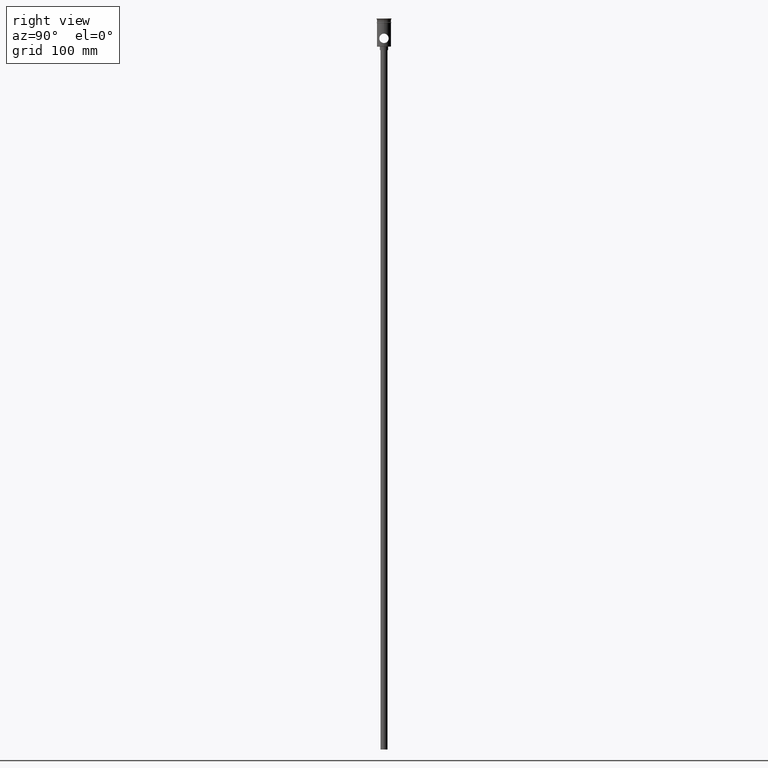
[diagram: clean part render]
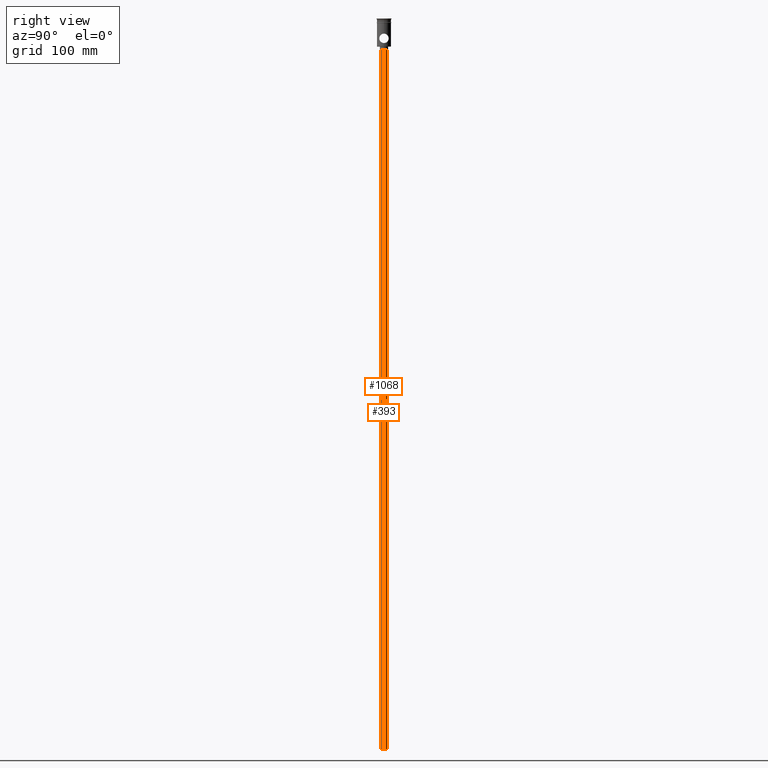
[diagram: same view with one multi-face feature highlighted, each face labeled with its STEP entity id]
A machine part, right view. The highlighted faces form ONE feature: a constant-radius fillet chain: 2 tangent blend faces with common blend radius 3 mm. The faces share edges in the B-rep.
Their STEP definitions:
[1] entity #393 (Cylinder):
#2 = EDGE_LOOP ( 'NONE', ( #1062, #1143, #716, #708 ) ) ;
#23 = CARTESIAN_POINT ( 'NONE',  ( -3.000000000000000444, 3.673940397442060361E-16, -624.0000000000000000 ) ) ;
#123 = VECTOR ( 'NONE', #1283, 1000.000000000000000 ) ;
#148 = CIRCLE ( 'NONE', #1273, 3.000000000000000444 ) ;
#180 = DIRECTION ( 'NONE',  ( 1.000000000000000000, 0.000000000000000000, 0.000000000000000000 ) ) ;
#232 = DIRECTION ( 'NONE',  ( -0.000000000000000000, -0.000000000000000000, 1.000000000000000000 ) ) ;
#254 = DIRECTION ( 'NONE',  ( 0.000000000000000000, 0.000000000000000000, -1.000000000000000000 ) ) ;
#262 = VERTEX_POINT ( 'NONE', #640 ) ;
#283 = AXIS2_PLACEMENT_3D ( 'NONE', #304, #400, #180 ) ;
#297 = FACE_OUTER_BOUND ( 'NONE', #2, .T. ) ;
#304 = CARTESIAN_POINT ( 'NONE',  ( 0.000000000000000000, 0.000000000000000000, -624.0000000000000000 ) ) ;
#308 = CARTESIAN_POINT ( 'NONE',  ( 0.000000000000000000, 0.000000000000000000, -27.00000000000000000 ) ) ;
#359 = VECTOR ( 'NONE', #232, 1000.000000000000000 ) ;
#393 = ADVANCED_FACE ( 'NONE', ( #297 ), #1208, .T. ) ;
#400 = DIRECTION ( 'NONE',  ( -0.000000000000000000, -0.000000000000000000, 1.000000000000000000 ) ) ;
#606 = VERTEX_POINT ( 'NONE', #817 ) ;
#621 = AXIS2_PLACEMENT_3D ( 'NONE', #1184, #254, #1161 ) ;
#627 = EDGE_CURVE ( 'NONE', #1144, #262, #1044, .T. ) ;
#640 = CARTESIAN_POINT ( 'NONE',  ( -3.000000000000000444, 3.673940397442060361E-16, -27.00000000000000000 ) ) ;
#708 = ORIENTED_EDGE ( 'NONE', *, *, #1397, .F. ) ;
#716 = ORIENTED_EDGE ( 'NONE', *, *, #1206, .T. ) ;
#817 = CARTESIAN_POINT ( 'NONE',  ( 3.000000000000000444, 0.000000000000000000, -27.00000000000000000 ) ) ;
#862 = DIRECTION ( 'NONE',  ( 0.000000000000000000, 0.000000000000000000, -1.000000000000000000 ) ) ;
#940 = EDGE_CURVE ( 'NONE', #1144, #1414, #1079, .T. ) ;
#1016 = DIRECTION ( 'NONE',  ( -1.000000000000000000, 0.000000000000000000, 0.000000000000000000 ) ) ;
#1044 = LINE ( 'NONE', #23, #123 ) ;
#1062 = ORIENTED_EDGE ( 'NONE', *, *, #940, .F. ) ;
#1079 = CIRCLE ( 'NONE', #621, 3.000000000000000444 ) ;
#1143 = ORIENTED_EDGE ( 'NONE', *, *, #627, .T. ) ;
#1144 = VERTEX_POINT ( 'NONE', #1215 ) ;
#1151 = CARTESIAN_POINT ( 'NONE',  ( 3.000000000000000444, 0.000000000000000000, -624.0000000000000000 ) ) ;
#1161 = DIRECTION ( 'NONE',  ( -1.000000000000000000, 0.000000000000000000, 0.000000000000000000 ) ) ;
#1184 = CARTESIAN_POINT ( 'NONE',  ( 0.000000000000000000, 0.000000000000000000, -624.0000000000000000 ) ) ;
#1206 = EDGE_CURVE ( 'NONE', #262, #606, #148, .T. ) ;
#1208 = CYLINDRICAL_SURFACE ( 'NONE', #283, 3.000000000000000444 ) ;
#1215 = CARTESIAN_POINT ( 'NONE',  ( -3.000000000000000444, 3.673940397442060361E-16, -624.0000000000000000 ) ) ;
#1264 = LINE ( 'NONE', #1390, #359 ) ;
#1273 = AXIS2_PLACEMENT_3D ( 'NONE', #308, #862, #1016 ) ;
#1283 = DIRECTION ( 'NONE',  ( -0.000000000000000000, -0.000000000000000000, 1.000000000000000000 ) ) ;
#1390 = CARTESIAN_POINT ( 'NONE',  ( 3.000000000000000444, 0.000000000000000000, -624.0000000000000000 ) ) ;
#1397 = EDGE_CURVE ( 'NONE', #1414, #606, #1264, .T. ) ;
#1414 = VERTEX_POINT ( 'NONE', #1151 ) ;
[2] entity #1068 (Cylinder):
#23 = CARTESIAN_POINT ( 'NONE',  ( -3.000000000000000444, 3.673940397442060361E-16, -624.0000000000000000 ) ) ;
#123 = VECTOR ( 'NONE', #1283, 1000.000000000000000 ) ;
#147 = AXIS2_PLACEMENT_3D ( 'NONE', #498, #954, #392 ) ;
#186 = DIRECTION ( 'NONE',  ( 0.000000000000000000, 0.000000000000000000, -1.000000000000000000 ) ) ;
#199 = EDGE_LOOP ( 'NONE', ( #1438, #1375, #655, #530 ) ) ;
#232 = DIRECTION ( 'NONE',  ( -0.000000000000000000, -0.000000000000000000, 1.000000000000000000 ) ) ;
#262 = VERTEX_POINT ( 'NONE', #640 ) ;
#266 = EDGE_CURVE ( 'NONE', #1414, #1144, #501, .T. ) ;
#293 = CYLINDRICAL_SURFACE ( 'NONE', #599, 3.000000000000000444 ) ;
#359 = VECTOR ( 'NONE', #232, 1000.000000000000000 ) ;
#392 = DIRECTION ( 'NONE',  ( -1.000000000000000000, 0.000000000000000000, 0.000000000000000000 ) ) ;
#394 = CARTESIAN_POINT ( 'NONE',  ( 0.000000000000000000, 0.000000000000000000, -624.0000000000000000 ) ) ;
#405 = FACE_OUTER_BOUND ( 'NONE', #199, .T. ) ;
#415 = DIRECTION ( 'NONE',  ( -0.000000000000000000, -0.000000000000000000, 1.000000000000000000 ) ) ;
#429 = CIRCLE ( 'NONE', #147, 3.000000000000000444 ) ;
#498 = CARTESIAN_POINT ( 'NONE',  ( 0.000000000000000000, 0.000000000000000000, -27.00000000000000000 ) ) ;
#501 = CIRCLE ( 'NONE', #684, 3.000000000000000444 ) ;
#523 = DIRECTION ( 'NONE',  ( 1.000000000000000000, 0.000000000000000000, 0.000000000000000000 ) ) ;
#530 = ORIENTED_EDGE ( 'NONE', *, *, #664, .T. ) ;
#599 = AXIS2_PLACEMENT_3D ( 'NONE', #847, #415, #523 ) ;
#606 = VERTEX_POINT ( 'NONE', #817 ) ;
#627 = EDGE_CURVE ( 'NONE', #1144, #262, #1044, .T. ) ;
#640 = CARTESIAN_POINT ( 'NONE',  ( -3.000000000000000444, 3.673940397442060361E-16, -27.00000000000000000 ) ) ;
#655 = ORIENTED_EDGE ( 'NONE', *, *, #1397, .T. ) ;
#664 = EDGE_CURVE ( 'NONE', #606, #262, #429, .T. ) ;
#684 = AXIS2_PLACEMENT_3D ( 'NONE', #394, #186, #753 ) ;
#753 = DIRECTION ( 'NONE',  ( -1.000000000000000000, 0.000000000000000000, 0.000000000000000000 ) ) ;
#817 = CARTESIAN_POINT ( 'NONE',  ( 3.000000000000000444, 0.000000000000000000, -27.00000000000000000 ) ) ;
#847 = CARTESIAN_POINT ( 'NONE',  ( 0.000000000000000000, 0.000000000000000000, -624.0000000000000000 ) ) ;
#954 = DIRECTION ( 'NONE',  ( 0.000000000000000000, 0.000000000000000000, -1.000000000000000000 ) ) ;
#1044 = LINE ( 'NONE', #23, #123 ) ;
#1068 = ADVANCED_FACE ( 'NONE', ( #405 ), #293, .T. ) ;
#1144 = VERTEX_POINT ( 'NONE', #1215 ) ;
#1151 = CARTESIAN_POINT ( 'NONE',  ( 3.000000000000000444, 0.000000000000000000, -624.0000000000000000 ) ) ;
#1215 = CARTESIAN_POINT ( 'NONE',  ( -3.000000000000000444, 3.673940397442060361E-16, -624.0000000000000000 ) ) ;
#1264 = LINE ( 'NONE', #1390, #359 ) ;
#1283 = DIRECTION ( 'NONE',  ( -0.000000000000000000, -0.000000000000000000, 1.000000000000000000 ) ) ;
#1375 = ORIENTED_EDGE ( 'NONE', *, *, #266, .F. ) ;
#1390 = CARTESIAN_POINT ( 'NONE',  ( 3.000000000000000444, 0.000000000000000000, -624.0000000000000000 ) ) ;
#1397 = EDGE_CURVE ( 'NONE', #1414, #606, #1264, .T. ) ;
#1414 = VERTEX_POINT ( 'NONE', #1151 ) ;
#1438 = ORIENTED_EDGE ( 'NONE', *, *, #627, .F. ) ;